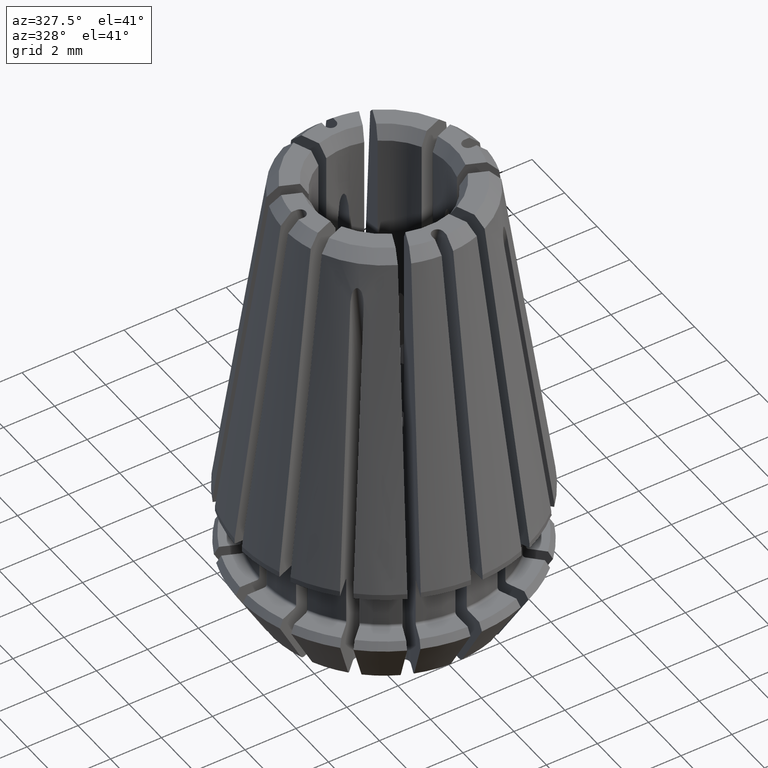
[diagram: clean part render]
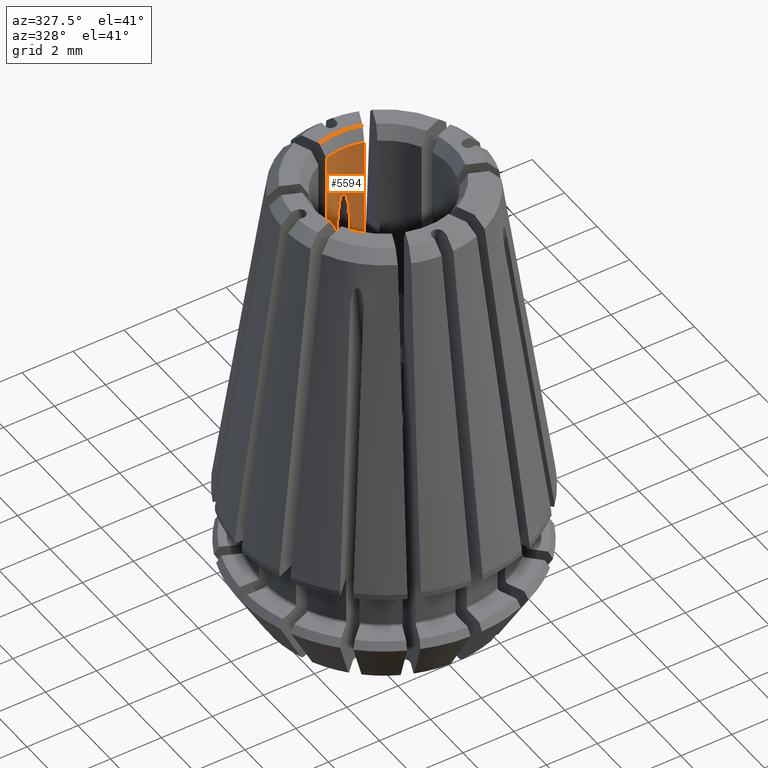
[diagram: same view with one face highlighted and labeled with its STEP entity id]
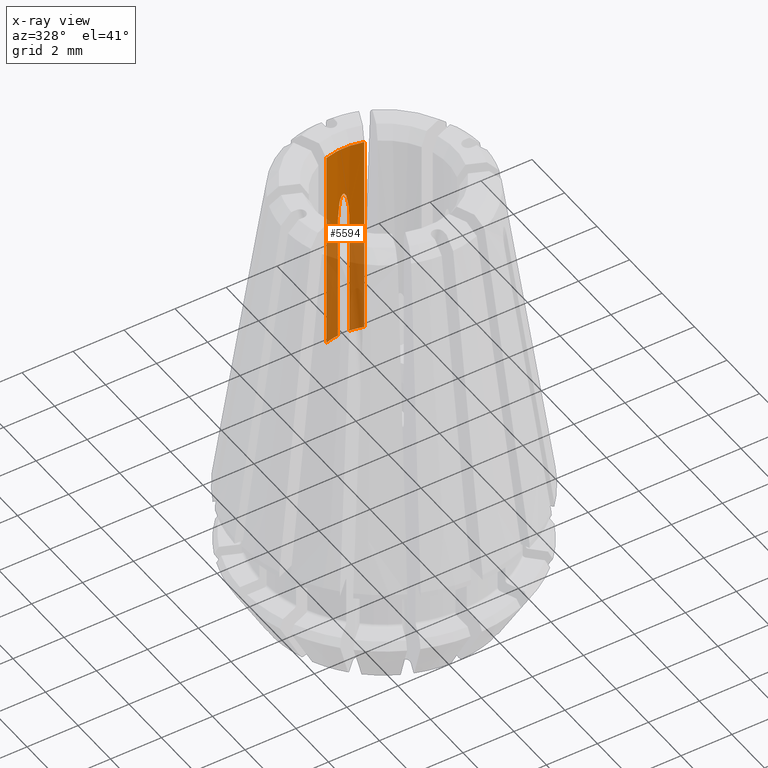
[diagram: x-ray of the same camera — body ghosted, the highlighted face saturated]
A machine part, auxiliary view. The second image highlights one B-rep face of the part: STEP entity #5594.
The next image is the same camera in x-ray: the body ghosted, the highlighted face saturated — about 51% of this face is hidden behind the body in this view.
In plain terms, the highlighted cylindrical surface (partial cylindrical patch) has radius 2.5 mm, axis along (0, 0, -1).
Its self-contained STEP definition (entity closure, byte-faithful):
#113=CYLINDRICAL_SURFACE('',#6071,2.5);
#240=B_SPLINE_CURVE_WITH_KNOTS('',3,(#9223,#9224,#9225,#9226,#9227,#9228,
#9229,#9230,#9231,#9232,#9233,#9234,#9235),.UNSPECIFIED.,.F.,.F.,(4,1,1,
1,1,1,1,1,1,1,4),(5.2107174037874E-17,0.000279956502655273,0.000559913005310494,
0.000839869507965715,0.000979847759293326,0.00111982601062094,0.00125980426194855,
0.00139978251327616,0.00167973901593138,0.0019596955185866,0.00223965202124182),
 .UNSPECIFIED.);
#546=LINE('',#9216,#890);
#547=LINE('',#9221,#891);
#548=LINE('',#9237,#892);
#549=LINE('',#9238,#893);
#890=VECTOR('',#7090,1000.);
#891=VECTOR('',#7093,1000.);
#892=VECTOR('',#7094,1000.);
#893=VECTOR('',#7095,1000.);
#1241=CIRCLE('',#5995,2.5);
#1288=CIRCLE('',#6072,2.5);
#1289=CIRCLE('',#6073,2.5);
#1885=ORIENTED_EDGE('',*,*,#3640,.F.);
#1886=ORIENTED_EDGE('',*,*,#3641,.F.);
#1887=ORIENTED_EDGE('',*,*,#3642,.T.);
#1888=ORIENTED_EDGE('',*,*,#3643,.T.);
#1889=ORIENTED_EDGE('',*,*,#3644,.F.);
#1890=ORIENTED_EDGE('',*,*,#3536,.F.);
#1891=ORIENTED_EDGE('',*,*,#3645,.T.);
#1892=ORIENTED_EDGE('',*,*,#3646,.T.);
#3536=EDGE_CURVE('',#4400,#4401,#1241,.T.);
#3640=EDGE_CURVE('',#4481,#4482,#546,.T.);
#3641=EDGE_CURVE('',#4483,#4481,#1288,.T.);
#3642=EDGE_CURVE('',#4483,#4484,#547,.T.);
#3643=EDGE_CURVE('',#4484,#4485,#240,.T.);
#3644=EDGE_CURVE('',#4401,#4485,#548,.T.);
#3645=EDGE_CURVE('',#4400,#4486,#549,.T.);
#3646=EDGE_CURVE('',#4486,#4482,#1289,.T.);
#4400=VERTEX_POINT('',#8899);
#4401=VERTEX_POINT('',#8901);
#4481=VERTEX_POINT('',#9217);
#4482=VERTEX_POINT('',#9218);
#4483=VERTEX_POINT('',#9220);
#4484=VERTEX_POINT('',#9222);
#4485=VERTEX_POINT('',#9236);
#4486=VERTEX_POINT('',#9239);
#4929=EDGE_LOOP('',(#1885,#1886,#1887,#1888,#1889,#1890,#1891,#1892));
#5223=FACE_BOUND('',#4929,.T.);
#5594=ADVANCED_FACE('',(#5223),#113,.F.);
#5995=AXIS2_PLACEMENT_3D('',#8900,#6900,#6901);
#6071=AXIS2_PLACEMENT_3D('',#9215,#7088,#7089);
#6072=AXIS2_PLACEMENT_3D('',#9219,#7091,#7092);
#6073=AXIS2_PLACEMENT_3D('',#9240,#7096,#7097);
#6900=DIRECTION('',(0.,0.,1.));
#6901=DIRECTION('',(1.,0.,0.));
#7088=DIRECTION('',(0.,0.,-1.));
#7089=DIRECTION('',(1.,0.,0.));
#7090=DIRECTION('',(0.,0.,1.));
#7091=DIRECTION('',(0.,0.,1.));
#7092=DIRECTION('',(1.,0.,0.));
#7093=DIRECTION('',(0.,0.,1.));
#7094=DIRECTION('',(0.,0.,1.));
#7095=DIRECTION('',(0.,0.,1.));
#7096=DIRECTION('',(0.,0.,1.));
#7097=DIRECTION('',(1.,0.,0.));
#8899=CARTESIAN_POINT('',(0.744953138200036,2.3864293037693,4.89999999999988));
#8900=CARTESIAN_POINT('',(0.,0.,4.9));
#8901=CARTESIAN_POINT('',(0.225,2.48985441341457,4.9));
#9215=CARTESIAN_POINT('',(0.,0.,60.));
#9216=CARTESIAN_POINT('',(-0.744953138199817,2.38642930376876,60.));
#9217=CARTESIAN_POINT('',(-0.744953138199817,2.38642930376876,4.9));
#9218=CARTESIAN_POINT('',(-0.744953138199817,2.38642930376876,13.));
#9219=CARTESIAN_POINT('',(0.,0.,4.9));
#9220=CARTESIAN_POINT('',(-0.225,2.48985441341457,4.9));
#9221=CARTESIAN_POINT('',(-0.225,2.48985441341457,60.));
#9222=CARTESIAN_POINT('',(-0.225,2.48985441341457,9.94011314348307));
#9223=CARTESIAN_POINT('',(-0.225,2.48985441341457,9.94011314348302));
#9224=CARTESIAN_POINT('',(-0.225000000000001,2.48985441341457,10.033548303842));
#9225=CARTESIAN_POINT('',(-0.219038549566003,2.49037643489021,10.2204303015192));
#9226=CARTESIAN_POINT('',(-0.194811006867307,2.49255300407631,10.4981232795276));
#9227=CARTESIAN_POINT('',(-0.149205450547632,2.49555316576443,10.732777639521));
#9228=CARTESIAN_POINT('',(-0.103391846149569,2.49822801192624,10.902380550237));
#9229=CARTESIAN_POINT('',(0.00510619445356891,2.50091781263074,11.0506612700268));
#9230=CARTESIAN_POINT('',(0.104859920966922,2.49808476097574,10.8941030250094));
#9231=CARTESIAN_POINT('',(0.15134300286184,2.49547321663793,10.7267456108233));
#9232=CARTESIAN_POINT('',(0.195018788511474,2.4925093751328,10.4935755126275));
#9233=CARTESIAN_POINT('',(0.21915893307891,2.49037327212119,10.2190569912363));
#9234=CARTESIAN_POINT('',(0.225,2.48985441341457,10.0329175765855));
#9235=CARTESIAN_POINT('',(0.225,2.48985441341457,9.94011314348302));
#9236=CARTESIAN_POINT('',(0.225,2.48985441341457,9.94011314348303));
#9237=CARTESIAN_POINT('',(0.225,2.48985441341457,60.));
#9238=CARTESIAN_POINT('',(0.744953138199814,2.38642930376876,60.));
#9239=CARTESIAN_POINT('',(0.744953138199814,2.38642930376876,13.));
#9240=CARTESIAN_POINT('',(0.,0.,13.));